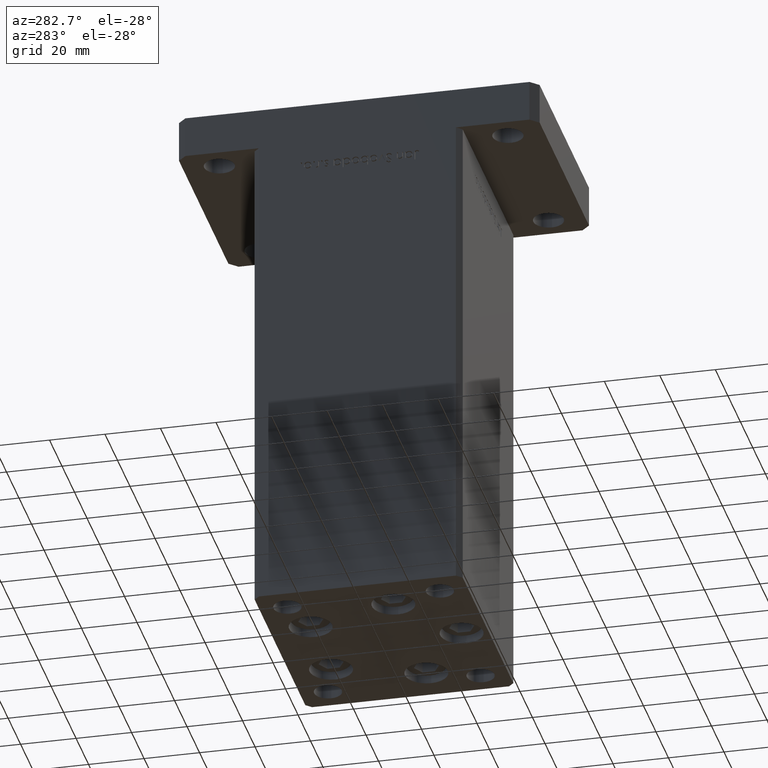
[diagram: clean part render]
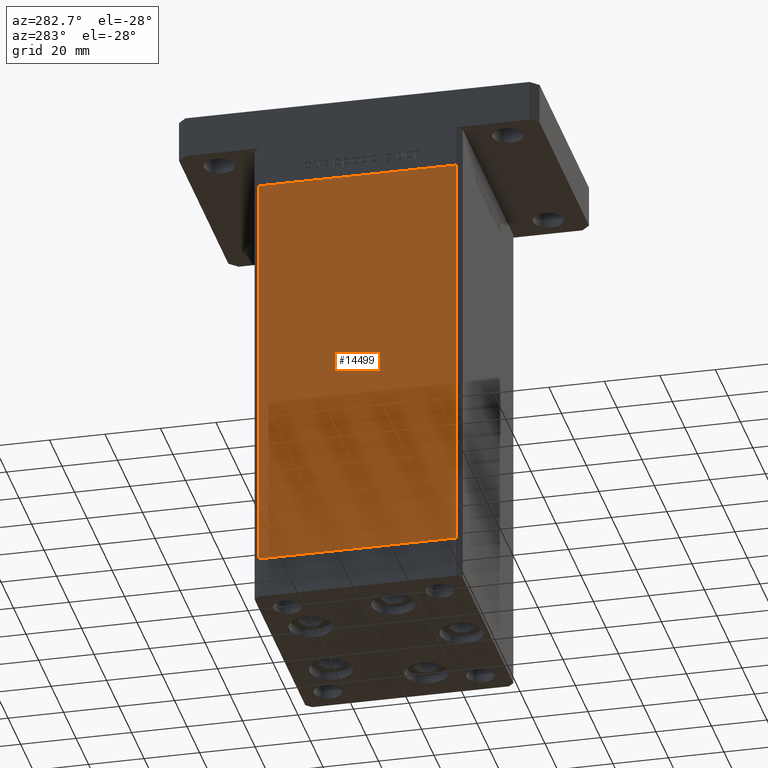
[diagram: same view with one face highlighted and labeled with its STEP entity id]
A machine part, auxiliary view. The second image highlights one B-rep face of the part: STEP entity #14499.
In plain terms, the highlighted planar face has unit normal (1, 0, 0).
Its self-contained STEP definition (entity closure, byte-faithful):
#111 = LINE ( 'NONE', #46699, #10141 ) ;
#390 = DIRECTION ( 'NONE',  ( -0.000000000000000000, -0.000000000000000000, -1.000000000000000000 ) ) ;
#805 = ORIENTED_EDGE ( 'NONE', *, *, #36723, .T. ) ;
#1386 = CARTESIAN_POINT ( 'NONE',  ( -42.50000000000000711, 35.50000000000001421, 0.000000000000000000 ) ) ;
#4731 = VECTOR ( 'NONE', #21741, 1000.000000000000000 ) ;
#6616 = DIRECTION ( 'NONE',  ( -2.931927001650941360E-16, 1.000000000000000000, 0.000000000000000000 ) ) ;
#6884 = CARTESIAN_POINT ( 'NONE',  ( -42.50000000000000711, 35.50000000000001421, 148.5000000000000000 ) ) ;
#7309 = DIRECTION ( 'NONE',  ( 2.931927001650941360E-16, -1.000000000000000000, 0.000000000000000000 ) ) ;
#10141 = VECTOR ( 'NONE', #390, 1000.000000000000000 ) ;
#11088 = VERTEX_POINT ( 'NONE', #1386 ) ;
#11521 = EDGE_CURVE ( 'NONE', #20743, #16576, #111, .T. ) ;
#12827 = ORIENTED_EDGE ( 'NONE', *, *, #11521, .F. ) ;
#13014 = ORIENTED_EDGE ( 'NONE', *, *, #20437, .T. ) ;
#13400 = EDGE_LOOP ( 'NONE', ( #805, #12827, #33666, #13014 ) ) ;
#13795 = CARTESIAN_POINT ( 'NONE',  ( -42.49999999999998579, -35.50000000000000711, 0.000000000000000000 ) ) ;
#14499 = ADVANCED_FACE ( 'NONE', ( #23416 ), #44273, .F. ) ;
#16194 = CARTESIAN_POINT ( 'NONE',  ( -42.50000000000000711, 35.50000000000001421, 148.5000000000000000 ) ) ;
#16576 = VERTEX_POINT ( 'NONE', #13795 ) ;
#18814 = DIRECTION ( 'NONE',  ( 1.000000000000000000, 2.931927001650941360E-16, -0.000000000000000000 ) ) ;
#20437 = EDGE_CURVE ( 'NONE', #32552, #11088, #33271, .T. ) ;
#20743 = VERTEX_POINT ( 'NONE', #53458 ) ;
#21741 = DIRECTION ( 'NONE',  ( 2.931927001650941360E-16, -1.000000000000000000, 0.000000000000000000 ) ) ;
#22296 = LINE ( 'NONE', #33934, #4731 ) ;
#23416 = FACE_OUTER_BOUND ( 'NONE', #13400, .T. ) ;
#25664 = VECTOR ( 'NONE', #7309, 1000.000000000000000 ) ;
#28177 = CARTESIAN_POINT ( 'NONE',  ( -42.50000000000000711, 35.50000000000001421, 0.000000000000000000 ) ) ;
#29398 = CARTESIAN_POINT ( 'NONE',  ( -42.50000000000000711, 35.50000000000001421, 148.5000000000000000 ) ) ;
#32552 = VERTEX_POINT ( 'NONE', #29398 ) ;
#32852 = EDGE_CURVE ( 'NONE', #32552, #20743, #22296, .T. ) ;
#33271 = LINE ( 'NONE', #16194, #35684 ) ;
#33666 = ORIENTED_EDGE ( 'NONE', *, *, #32852, .F. ) ;
#33934 = CARTESIAN_POINT ( 'NONE',  ( -42.50000000000000711, 35.50000000000001421, 148.5000000000000000 ) ) ;
#35684 = VECTOR ( 'NONE', #41139, 1000.000000000000000 ) ;
#36723 = EDGE_CURVE ( 'NONE', #11088, #16576, #44177, .T. ) ;
#41139 = DIRECTION ( 'NONE',  ( -0.000000000000000000, -0.000000000000000000, -1.000000000000000000 ) ) ;
#44177 = LINE ( 'NONE', #28177, #25664 ) ;
#44273 = PLANE ( 'NONE',  #44837 ) ;
#44837 = AXIS2_PLACEMENT_3D ( 'NONE', #6884, #18814, #6616 ) ;
#46699 = CARTESIAN_POINT ( 'NONE',  ( -42.49999999999998579, -35.50000000000000711, 148.5000000000000000 ) ) ;
#53458 = CARTESIAN_POINT ( 'NONE',  ( -42.49999999999998579, -35.50000000000000711, 148.5000000000000000 ) ) ;